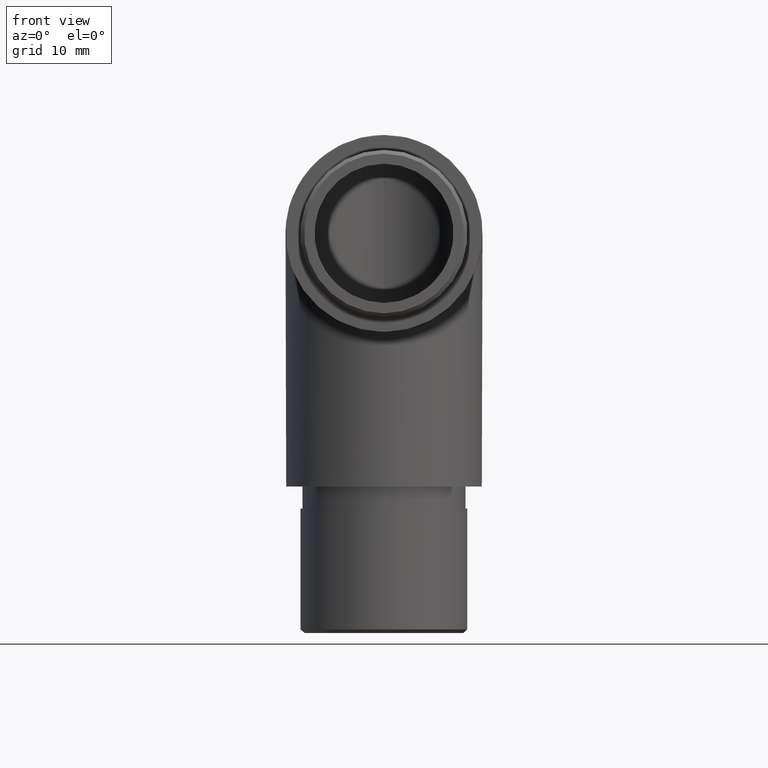
[diagram: clean part render]
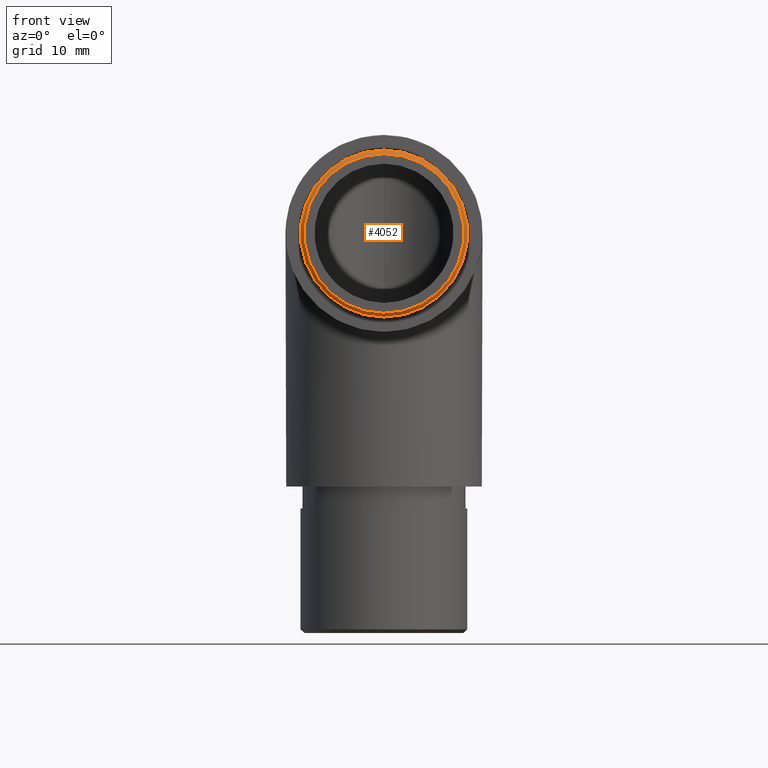
[diagram: same view with one face highlighted and labeled with its STEP entity id]
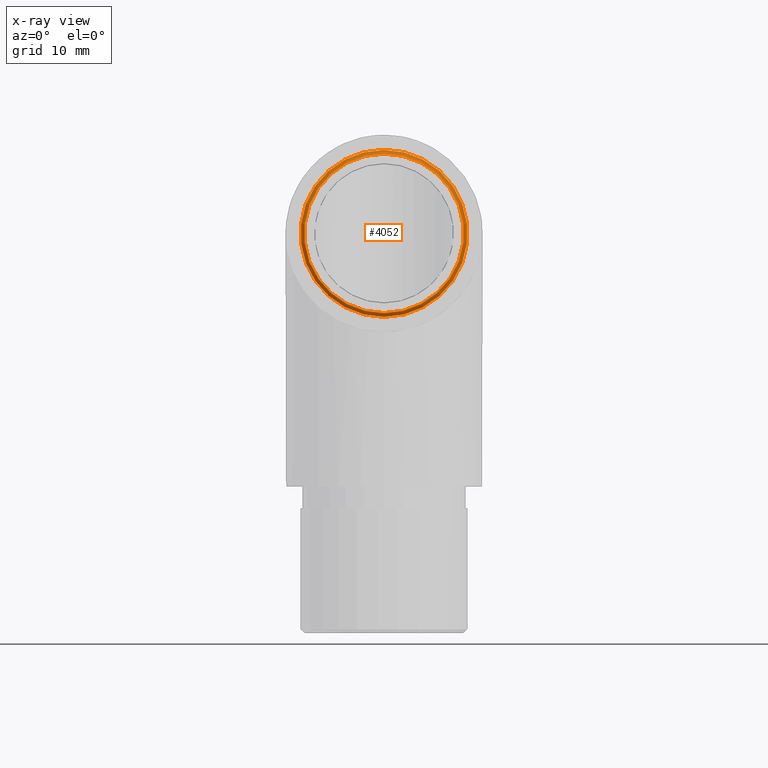
[diagram: x-ray of the same camera — body ghosted, the highlighted face saturated]
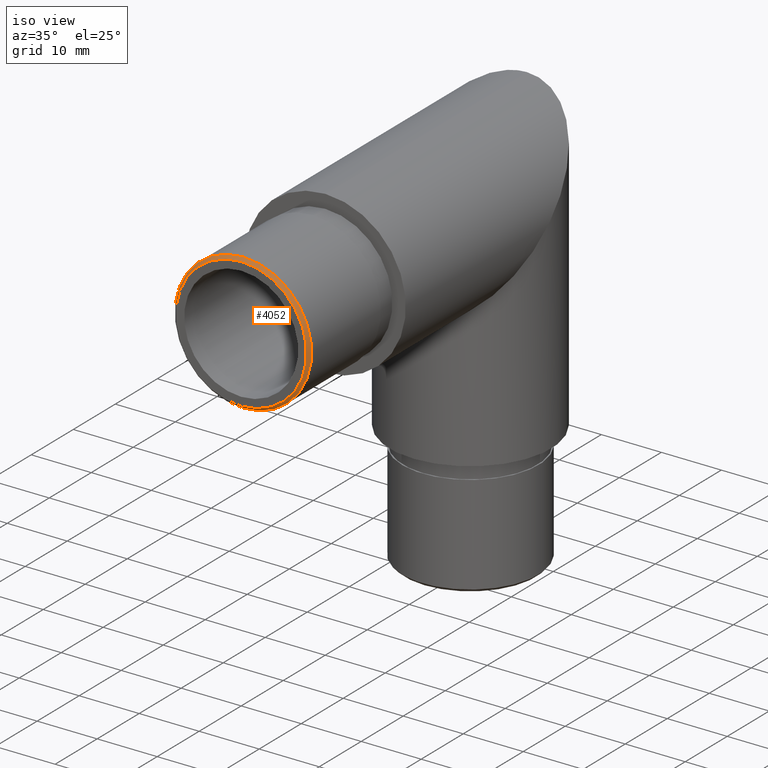
[diagram: same view with one face highlighted and labeled with its STEP entity id]
A machine part, front view. The second image highlights one B-rep face of the part: STEP entity #4052.
The next image is the same camera in x-ray: the body ghosted, the highlighted face saturated — about 0% of this face is hidden behind the body in this view.
A second angle (iso view) of the same face is appended — the face is thin or edge-on in the first view.
In plain terms, the highlighted conical surface has half-angle 45 deg.
Its self-contained STEP definition (entity closure, byte-faithful):
#649 = ORIENTED_EDGE ( 'NONE', *, *, #2291, .F. ) ;
#697 = DIRECTION ( 'NONE',  ( 0.0000000000000000000, 1.000000000000000000, 0.0000000000000000000 ) ) ;
#955 = VERTEX_POINT ( 'NONE', #11530 ) ;
#1742 = ORIENTED_EDGE ( 'NONE', *, *, #11046, .F. ) ;
#2080 = CARTESIAN_POINT ( 'NONE',  ( 0.0000000000000000000, -20.00000000000000000, 0.0000000000000000000 ) ) ;
#2291 = EDGE_CURVE ( 'NONE', #3756, #3756, #5084, .T. ) ;
#2745 = AXIS2_PLACEMENT_3D ( 'NONE', #2080, #10444, #3012 ) ;
#2949 = CARTESIAN_POINT ( 'NONE',  ( 0.0000000000000000000, -19.49999999999999300, -11.40000000000000000 ) ) ;
#3012 = DIRECTION ( 'NONE',  ( 0.0000000000000000000, 0.0000000000000000000, 1.000000000000000000 ) ) ;
#3335 = DIRECTION ( 'NONE',  ( 0.0000000000000000000, -1.000000000000000000, 0.0000000000000000000 ) ) ;
#3756 = VERTEX_POINT ( 'NONE', #2949 ) ;
#4052 = ADVANCED_FACE ( 'NONE', ( #4374, #11124 ), #4656, .T. ) ;
#4374 = FACE_OUTER_BOUND ( 'NONE', #10400, .T. ) ;
#4656 = CONICAL_SURFACE ( 'NONE', #2745, 10.89999999999999100, 0.7853981633974500600 ) ;
#5084 = CIRCLE ( 'NONE', #7710, 11.40000000000000000 ) ;
#5127 = DIRECTION ( 'NONE',  ( 0.0000000000000000000, 0.0000000000000000000, -1.000000000000000000 ) ) ;
#7710 = AXIS2_PLACEMENT_3D ( 'NONE', #11079, #697, #10961 ) ;
#9090 = AXIS2_PLACEMENT_3D ( 'NONE', #9888, #3335, #5127 ) ;
#9703 = EDGE_LOOP ( 'NONE', ( #1742 ) ) ;
#9888 = CARTESIAN_POINT ( 'NONE',  ( 0.0000000000000000000, -20.00000000000000000, 0.0000000000000000000 ) ) ;
#10400 = EDGE_LOOP ( 'NONE', ( #649 ) ) ;
#10444 = DIRECTION ( 'NONE',  ( 0.0000000000000000000, 1.000000000000000000, 0.0000000000000000000 ) ) ;
#10961 = DIRECTION ( 'NONE',  ( 0.0000000000000000000, 0.0000000000000000000, -1.000000000000000000 ) ) ;
#11046 = EDGE_CURVE ( 'NONE', #955, #955, #11230, .T. ) ;
#11079 = CARTESIAN_POINT ( 'NONE',  ( 0.0000000000000000000, -19.49999999999999300, 0.0000000000000000000 ) ) ;
#11124 = FACE_BOUND ( 'NONE', #9703, .T. ) ;
#11230 = CIRCLE ( 'NONE', #9090, 10.89999999999999100 ) ;
#11530 = CARTESIAN_POINT ( 'NONE',  ( 0.0000000000000000000, -20.00000000000000000, -10.89999999999999100 ) ) ;